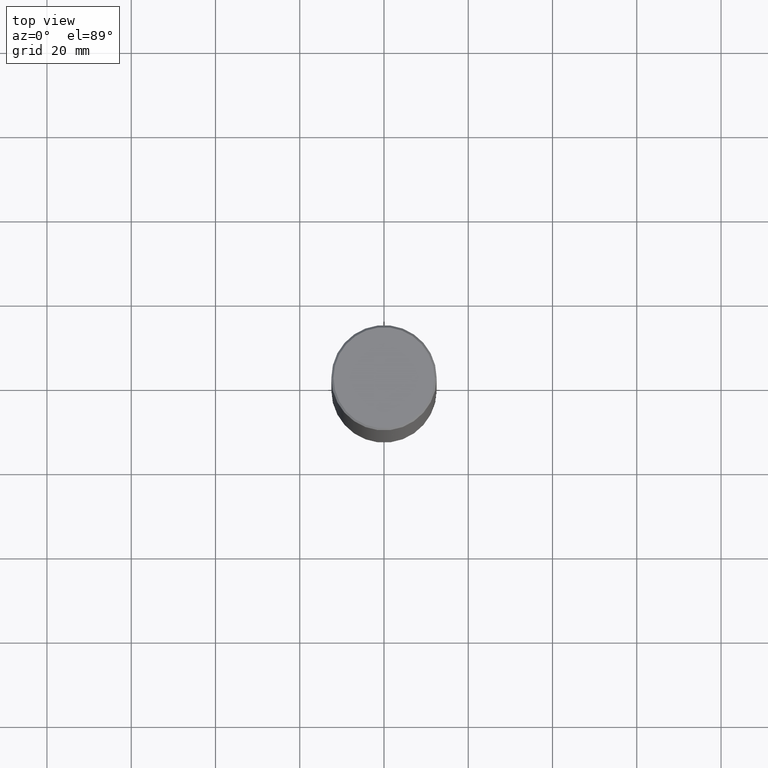
[diagram: clean part render]
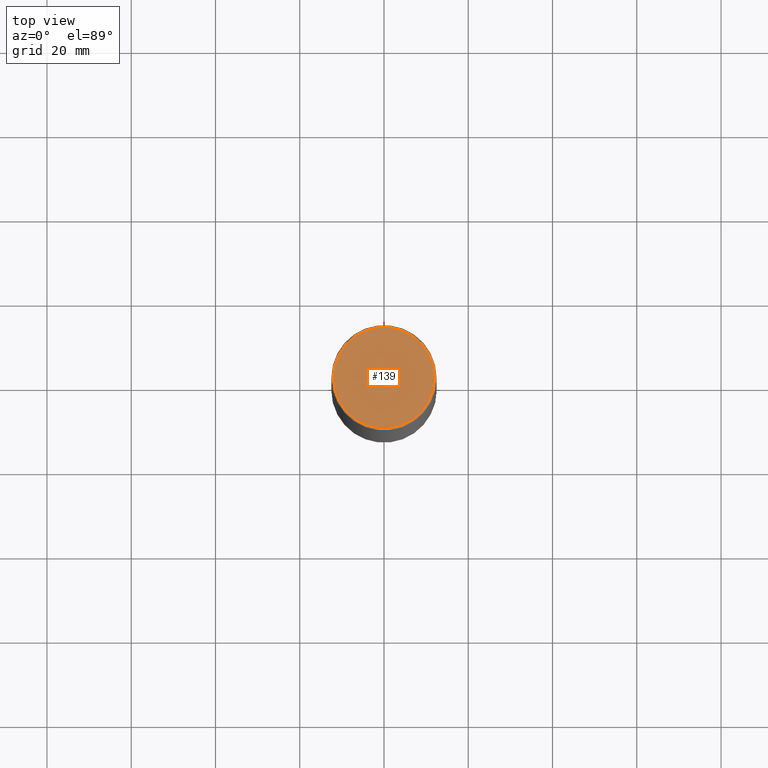
[diagram: same view with one face highlighted and labeled with its STEP entity id]
A machine part, top view. The second image highlights one B-rep face of the part: STEP entity #139.
In plain terms, the highlighted planar face has unit normal (0, -0, -1).
Its self-contained STEP definition (entity closure, byte-faithful):
#5 = DIRECTION ( 'NONE',  ( 1.000000000000000000, -6.982962677686266711E-15, 4.875605319575677862E-29 ) ) ;
#38 = CARTESIAN_POINT ( 'NONE',  ( 0.4721500000000000696, -3.342703923013975763E-15, -1.664719871138928270E-16 ) ) ;
#65 = VERTEX_POINT ( 'NONE', #147 ) ;
#66 = CARTESIAN_POINT ( 'NONE',  ( 3.297005828269570364E-15, 0.4721500000000000696, -1.731738907691749419E-15 ) ) ;
#87 = FACE_OUTER_BOUND ( 'NONE', #216, .T. ) ;
#94 = DIRECTION ( 'NONE',  ( -2.445468806185136597E-29, 3.491481338843145583E-15, 1.000000000000000000 ) ) ;
#97 = PLANE ( 'NONE',  #390 ) ;
#100 = EDGE_CURVE ( 'NONE', #65, #144, #103, .T. ) ;
#103 = CIRCLE ( 'NONE', #226, 0.4721500000000000696 ) ;
#120 = EDGE_CURVE ( 'NONE', #144, #65, #167, .T. ) ;
#131 = CARTESIAN_POINT ( 'NONE',  ( 4.071020515907357082E-45, -5.812338364483744108E-31, -1.664719871139160491E-16 ) ) ;
#139 = ADVANCED_FACE ( 'NONE', ( #87 ), #97, .F. ) ;
#144 = VERTEX_POINT ( 'NONE', #38 ) ;
#147 = CARTESIAN_POINT ( 'NONE',  ( -0.4721500000000000696, 3.331920641658001618E-15, -1.664719871139392219E-16 ) ) ;
#167 = CIRCLE ( 'NONE', #189, 0.4721500000000000696 ) ;
#189 = AXIS2_PLACEMENT_3D ( 'NONE', #222, #388, #357 ) ;
#216 = EDGE_LOOP ( 'NONE', ( #406, #291 ) ) ;
#222 = CARTESIAN_POINT ( 'NONE',  ( 4.071020515907357082E-45, -5.812338364483744108E-31, -1.664719871139160491E-16 ) ) ;
#226 = AXIS2_PLACEMENT_3D ( 'NONE', #131, #94, #5 ) ;
#291 = ORIENTED_EDGE ( 'NONE', *, *, #120, .T. ) ;
#357 = DIRECTION ( 'NONE',  ( 1.000000000000000000, -6.982962677686266711E-15, 4.875605319575677862E-29 ) ) ;
#386 = DIRECTION ( 'NONE',  ( 2.438088387897960049E-29, -3.491481338843145188E-15, -1.000000000000000000 ) ) ;
#388 = DIRECTION ( 'NONE',  ( -2.445468806185136597E-29, 3.491481338843145583E-15, 1.000000000000000000 ) ) ;
#390 = AXIS2_PLACEMENT_3D ( 'NONE', #66, #386, #414 ) ;
#406 = ORIENTED_EDGE ( 'NONE', *, *, #100, .T. ) ;
#414 = DIRECTION ( 'NONE',  ( -1.000000000000000000, 6.982962677686265922E-15, -4.876176775795935793E-29 ) ) ;